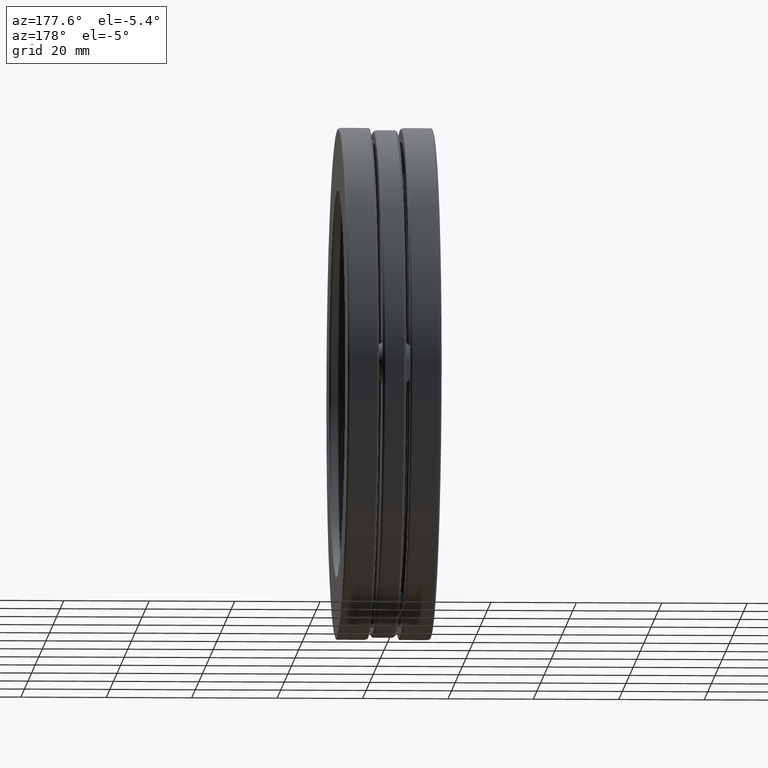
[diagram: clean part render]
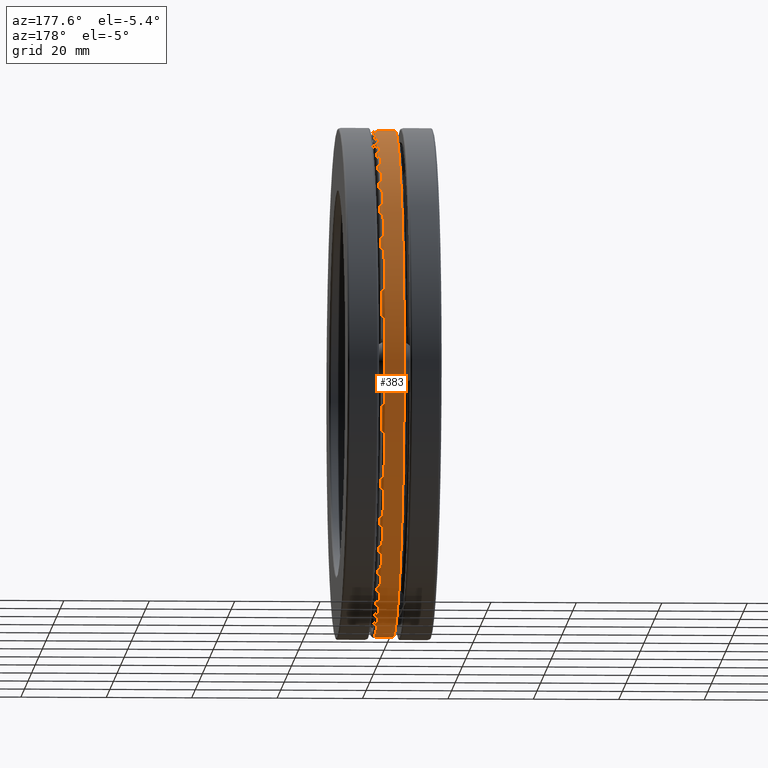
[diagram: same view with one face highlighted and labeled with its STEP entity id]
A machine part, auxiliary view. The second image highlights one B-rep face of the part: STEP entity #383.
In plain terms, the highlighted cylindrical surface (bore or boss wall) has radius 59.4868 mm, axis along (-1, -0, -0).
Its self-contained STEP definition (entity closure, byte-faithful):
#58 = CARTESIAN_POINT ( 'NONE',  ( 0.0000000000000000000, 0.0000000000000000000, 0.0000000000000000000 ) ) ;
#91 = CARTESIAN_POINT ( 'NONE',  ( 0.08825000000000000900, 0.0000000000000000000, 0.0000000000000000000 ) ) ;
#108 = DIRECTION ( 'NONE',  ( -1.000000000000000000, -0.0000000000000000000, -0.0000000000000000000 ) ) ;
#125 = DIRECTION ( 'NONE',  ( -1.000000000000000000, -0.0000000000000000000, -0.0000000000000000000 ) ) ;
#131 = FACE_OUTER_BOUND ( 'NONE', #188, .T. ) ;
#151 = CARTESIAN_POINT ( 'NONE',  ( -0.08825000000000000900, 0.0000000000000000000, 2.341999999999999600 ) ) ;
#162 = EDGE_CURVE ( 'NONE', #451, #451, #522, .T. ) ;
#174 = CARTESIAN_POINT ( 'NONE',  ( 0.08825000000000000900, 0.0000000000000000000, 2.341999999999999600 ) ) ;
#188 = EDGE_LOOP ( 'NONE', ( #496 ) ) ;
#251 = ORIENTED_EDGE ( 'NONE', *, *, #567, .T. ) ;
#263 = CYLINDRICAL_SURFACE ( 'NONE', #557, 2.341999999999999600 ) ;
#280 = DIRECTION ( 'NONE',  ( -1.000000000000000000, -0.0000000000000000000, -0.0000000000000000000 ) ) ;
#323 = EDGE_LOOP ( 'NONE', ( #251 ) ) ;
#375 = AXIS2_PLACEMENT_3D ( 'NONE', #91, #280, #726 ) ;
#383 = ADVANCED_FACE ( 'NONE', ( #785, #131 ), #263, .T. ) ;
#436 = CARTESIAN_POINT ( 'NONE',  ( -0.08825000000000000900, 0.0000000000000000000, 0.0000000000000000000 ) ) ;
#451 = VERTEX_POINT ( 'NONE', #151 ) ;
#496 = ORIENTED_EDGE ( 'NONE', *, *, #162, .F. ) ;
#510 = DIRECTION ( 'NONE',  ( 0.0000000000000000000, 0.0000000000000000000, 1.000000000000000000 ) ) ;
#522 = CIRCLE ( 'NONE', #758, 2.341999999999999600 ) ;
#557 = AXIS2_PLACEMENT_3D ( 'NONE', #58, #125, #579 ) ;
#567 = EDGE_CURVE ( 'NONE', #746, #746, #615, .T. ) ;
#579 = DIRECTION ( 'NONE',  ( 0.0000000000000000000, 0.0000000000000000000, 1.000000000000000000 ) ) ;
#615 = CIRCLE ( 'NONE', #375, 2.341999999999999600 ) ;
#726 = DIRECTION ( 'NONE',  ( 0.0000000000000000000, 0.0000000000000000000, 1.000000000000000000 ) ) ;
#746 = VERTEX_POINT ( 'NONE', #174 ) ;
#758 = AXIS2_PLACEMENT_3D ( 'NONE', #436, #108, #510 ) ;
#785 = FACE_OUTER_BOUND ( 'NONE', #323, .T. ) ;